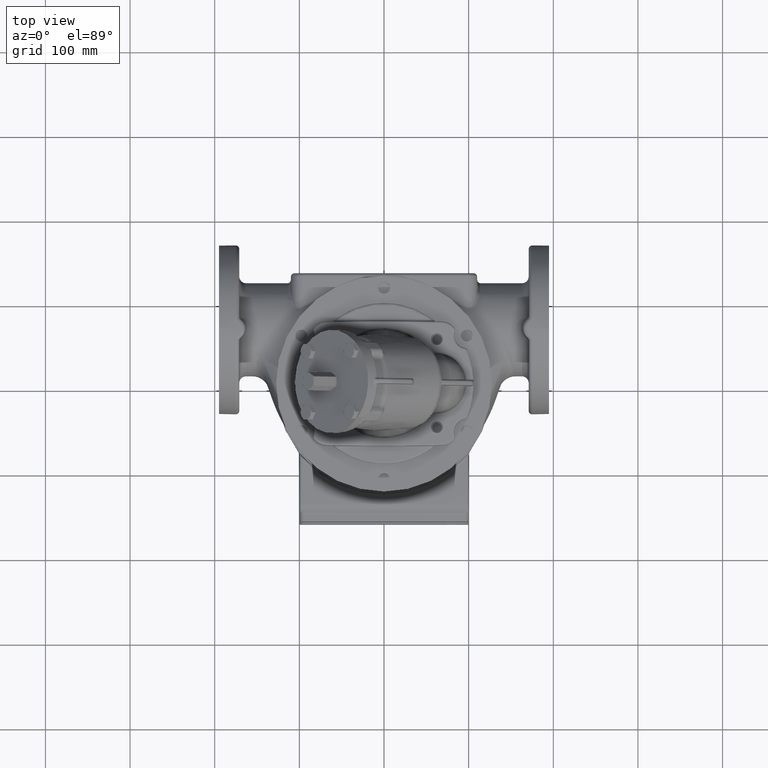
[diagram: clean part render]
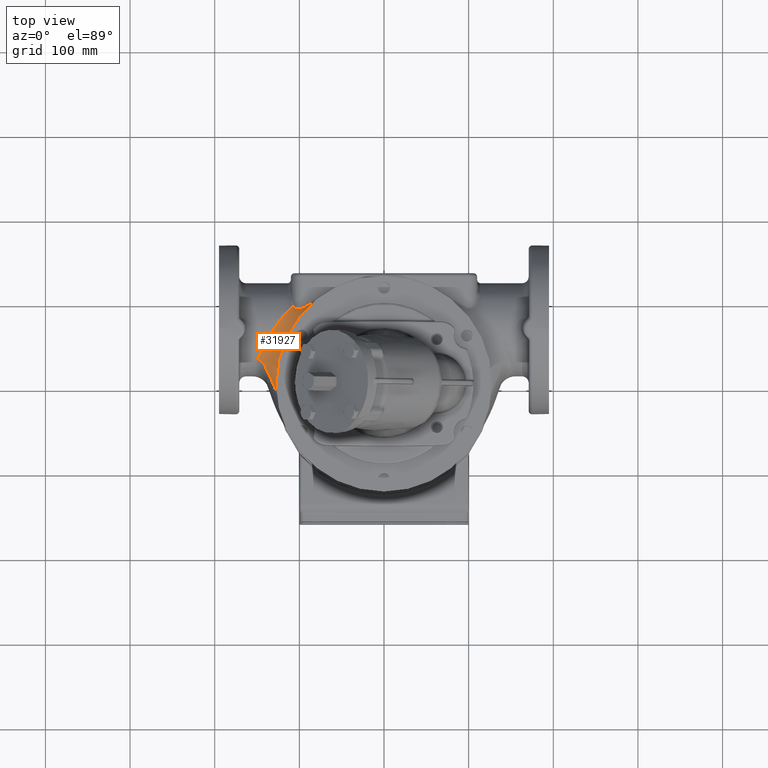
[diagram: same view with one face highlighted and labeled with its STEP entity id]
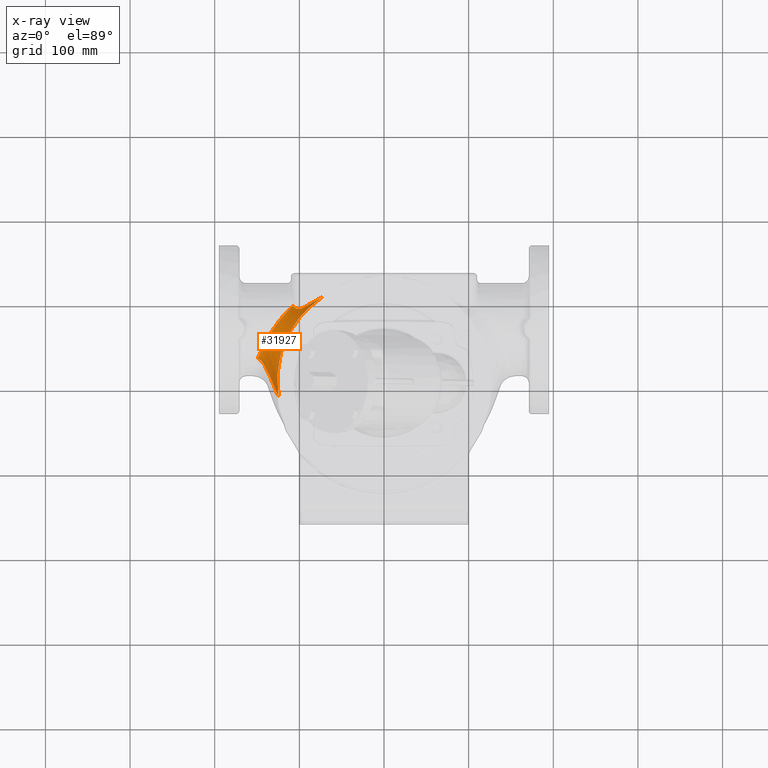
[diagram: x-ray of the same camera — body ghosted, the highlighted face saturated]
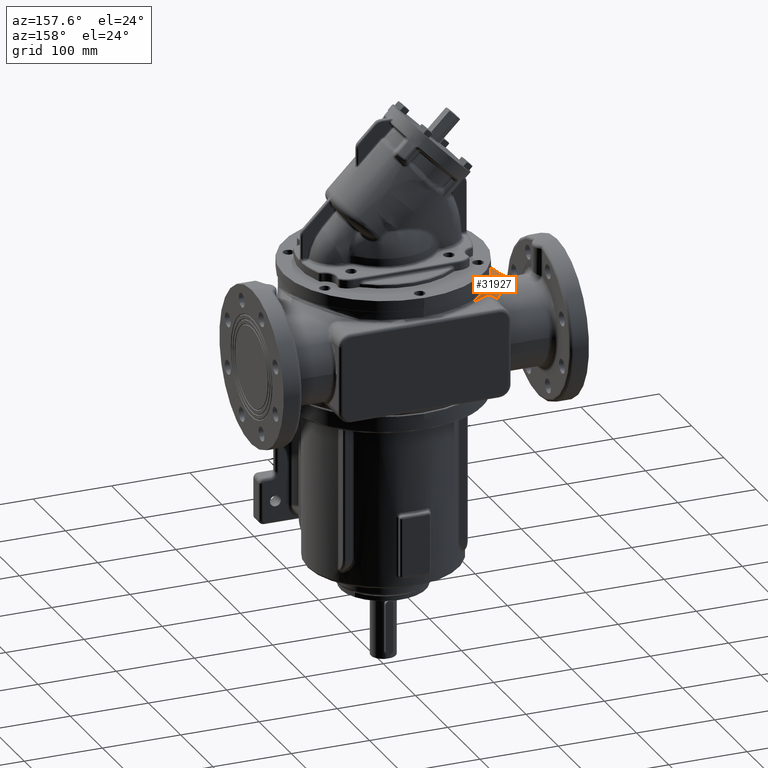
[diagram: same view with one face highlighted and labeled with its STEP entity id]
A machine part, top view. The second image highlights one B-rep face of the part: STEP entity #31927.
The next image is the same camera in x-ray: the body ghosted, the highlighted face saturated — about 0% of this face is hidden behind the body in this view.
A second angle (auxiliary view) of the same face is appended — the face is thin or edge-on in the first view.
In plain terms, the highlighted face is a freeform B-spline surface patch.
Its self-contained STEP definition (entity closure, byte-faithful):
#6374=CARTESIAN_POINT('',(-9.352863820615E1,9.097919038463E1,1.296525135358E2));
#6375=CARTESIAN_POINT('',(-9.301980745850E1,9.127317793800E1,1.296683620455E2));
#6376=CARTESIAN_POINT('',(-9.198525429004E1,9.187219354731E1,1.296998598189E2));
#6377=CARTESIAN_POINT('',(-9.038521124135E1,9.280008248154E1,1.297463597574E2));
#6378=CARTESIAN_POINT('',(-8.872666225035E1,9.376054552483E1,1.297926166661E2));
#6379=CARTESIAN_POINT('',(-8.700301312953E1,9.475489909386E1,1.298384551612E2));
#6380=CARTESIAN_POINT('',(-8.520489212638E1,9.578604310667E1,1.298835543570E2));
#6381=CARTESIAN_POINT('',(-8.332908455860E1,9.685221313942E1,1.299281717391E2));
#6382=CARTESIAN_POINT('',(-8.139144202792E1,9.794078722518E1,1.299719424280E2));
#6383=CARTESIAN_POINT('',(-7.940188641536E1,9.904271248406E1,1.300147532457E2));
#6384=CARTESIAN_POINT('',(-7.734906223613E1,1.001607586263E2,1.300566359528E2));
#6385=CARTESIAN_POINT('',(-7.522504353566E1,1.012950968419E2,1.300976787365E2));
#6386=CARTESIAN_POINT('',(-7.375040466959E1,1.020651476734E2,1.301246464383E2));
#6387=CARTESIAN_POINT('',(-7.300019726256E1,1.024519043781E2,1.301379599815E2));
#6389=CARTESIAN_POINT('',(-1.246290130794E2,-1.514880952594E1,
1.304506410042E2));
#6390=CARTESIAN_POINT('',(-1.247424623020E2,-1.441118430083E1,
1.305722200072E2));
#6391=CARTESIAN_POINT('',(-1.249597305232E2,-1.291831858498E1,
1.308095735635E2));
#6392=CARTESIAN_POINT('',(-1.252526204036E2,-1.062925804183E1,
1.311510016726E2));
#6393=CARTESIAN_POINT('',(-1.255088840638E2,-8.295008907996E0,
1.314801457612E2));
#6394=CARTESIAN_POINT('',(-1.257248186188E2,-5.932563313245E0,
1.317965620991E2));
#6395=CARTESIAN_POINT('',(-1.258981956221E2,-3.553883258276E0,
1.321004619319E2));
#6396=CARTESIAN_POINT('',(-1.260277268224E2,-1.167104158789E0,
1.323922268904E2));
#6397=CARTESIAN_POINT('',(-1.261128368138E2,1.219228995980E0,1.326716023007E2));
#6398=CARTESIAN_POINT('',(-1.261531196827E2,3.599023258477E0,1.329387763599E2));
#6399=CARTESIAN_POINT('',(-1.261486749598E2,5.957561673885E0,1.331932594859E2));
#6400=CARTESIAN_POINT('',(-1.261000756385E2,8.303092699851E0,1.334370483762E2));
#6401=CARTESIAN_POINT('',(-1.260065853623E2,1.064923092713E1,1.336725820748E2));
#6402=CARTESIAN_POINT('',(-1.258694219179E2,1.298694943815E1,1.338982650579E2));
#6403=CARTESIAN_POINT('',(-1.256887849979E2,1.530908254471E1,1.341137384614E2));
#6404=CARTESIAN_POINT('',(-1.254659119041E2,1.760691811648E1,1.343185444247E2));
#6405=CARTESIAN_POINT('',(-1.252005550794E2,1.988675124025E1,1.345138499511E2));
#6406=CARTESIAN_POINT('',(-1.248924654246E2,2.215515088492E1,1.347003400447E2));
#6407=CARTESIAN_POINT('',(-1.245426194811E2,2.440851853276E1,1.348772300473E2));
#6408=CARTESIAN_POINT('',(-1.241517366936E2,2.664258860954E1,1.350443298260E2));
#6409=CARTESIAN_POINT('',(-1.237207269705E2,2.885608193246E1,1.352012716658E2));
#6410=CARTESIAN_POINT('',(-1.232498834688E2,3.104852985631E1,1.353481281436E2));
#6411=CARTESIAN_POINT('',(-1.227402607319E2,3.321917066771E1,1.354844130422E2));
#6412=CARTESIAN_POINT('',(-1.221922878301E2,3.536697293279E1,1.356099953411E2));
#6413=CARTESIAN_POINT('',(-1.216070719902E2,3.749090093856E1,1.357243868955E2));
#6414=CARTESIAN_POINT('',(-1.209854770666E2,3.958886163785E1,1.358272850053E2));
#6415=CARTESIAN_POINT('',(-1.203289219025E2,4.165923344255E1,1.359181941580E2));
#6416=CARTESIAN_POINT('',(-1.196383643944E2,4.370060552523E1,1.359967411675E2));
#6417=CARTESIAN_POINT('',(-1.189151021072E2,4.571180272160E1,1.360625241910E2));
#6418=CARTESIAN_POINT('',(-1.181601605390E2,4.769186079375E1,1.361151559607E2));
#6419=CARTESIAN_POINT('',(-1.173747532950E2,4.963983532299E1,1.361543356892E2));
#6420=CARTESIAN_POINT('',(-1.165595628076E2,5.155603562807E1,1.361797568723E2));
#6421=CARTESIAN_POINT('',(-1.157146929622E2,5.344187545743E1,1.361912406022E2));
#6422=CARTESIAN_POINT('',(-1.148402377160E2,5.529868757228E1,1.361885511366E2));
#6423=CARTESIAN_POINT('',(-1.139359563695E2,5.712809885451E1,1.361715629632E2));
#6424=CARTESIAN_POINT('',(-1.130016505008E2,5.893172605926E1,1.361400834564E2));
#6425=CARTESIAN_POINT('',(-1.120358384981E2,6.071294964356E1,1.360939469514E2));
#6426=CARTESIAN_POINT('',(-1.110369268135E2,6.247502850657E1,1.360329777982E2));
#6427=CARTESIAN_POINT('',(-1.100027278733E2,6.422171909189E1,1.359570089049E2));
#6428=CARTESIAN_POINT('',(-1.089307548356E2,6.595685765890E1,1.358658270916E2));
#6429=CARTESIAN_POINT('',(-1.078185295003E2,6.768362300861E1,1.357591316626E2));
#6430=CARTESIAN_POINT('',(-1.066635697212E2,6.940472055228E1,1.356366653846E2));
#6431=CARTESIAN_POINT('',(-1.054632686808E2,7.112273580861E1,1.354981582094E2));
#6432=CARTESIAN_POINT('',(-1.042148514124E2,7.283996492891E1,1.353434150986E2));
#6433=CARTESIAN_POINT('',(-1.029155591477E2,7.455843737526E1,1.351722406332E2));
#6434=CARTESIAN_POINT('',(-1.015632102757E2,7.627909074895E1,1.349845006627E2));
#6435=CARTESIAN_POINT('',(-1.001554078575E2,7.800287904555E1,1.347800204713E2));
#6436=CARTESIAN_POINT('',(-9.869104164033E1,7.972866749534E1,1.345588904792E2));
#6437=CARTESIAN_POINT('',(-9.717029335402E1,8.145418958524E1,1.343214619967E2));
#6438=CARTESIAN_POINT('',(-9.559352421627E1,8.317726857472E1,1.340684723775E2));
#6439=CARTESIAN_POINT('',(-9.396132063262E1,8.489540978129E1,1.338005344146E2));
#6440=CARTESIAN_POINT('',(-9.227426871863E1,8.660578972679E1,1.335183365575E2));
#6441=CARTESIAN_POINT('',(-9.053465747047E1,8.830432435969E1,1.332225257040E2));
#6442=CARTESIAN_POINT('',(-8.874527702314E1,8.998728312992E1,1.329143203065E2));
#6443=CARTESIAN_POINT('',(-8.690862779407E1,9.165093713423E1,1.325948259269E2));
#6444=CARTESIAN_POINT('',(-8.502732885477E1,9.329196004174E1,1.322651382935E2));
#6445=CARTESIAN_POINT('',(-8.310470115357E1,9.490621325157E1,1.319263617165E2));
#6446=CARTESIAN_POINT('',(-8.114530622803E1,9.648974208445E1,1.315798117804E2));
#6447=CARTESIAN_POINT('',(-7.915266178153E1,9.803908671728E1,1.312270753229E2));
#6448=CARTESIAN_POINT('',(-7.712968141215E1,9.955193042619E1,1.308688832874E2));
#6449=CARTESIAN_POINT('',(-7.507875353179E1,1.010259423677E2,1.305059882921E2));
#6450=CARTESIAN_POINT('',(-7.369631118268E1,1.019808605811E2,1.302610428681E2));
#6451=CARTESIAN_POINT('',(-7.300133152208E1,1.024512288776E2,1.301380501532E2));
#6453=CARTESIAN_POINT('',(-1.246300479906E2,-1.514792726698E1,
1.304505519832E2));
#6454=CARTESIAN_POINT('',(-1.247089724927E2,-1.498447553668E1,
1.303854027806E2));
#6455=CARTESIAN_POINT('',(-1.252562312698E2,-1.384374623578E1,
1.299333324662E2));
#6456=CARTESIAN_POINT('',(-1.262331113471E2,-1.171683995750E1,
1.291239307389E2));
#6457=CARTESIAN_POINT('',(-1.275141297400E2,-8.759300746489E0,
1.280688210439E2));
#6458=CARTESIAN_POINT('',(-1.287426542046E2,-5.795966531630E0,
1.270747626869E2));
#6459=CARTESIAN_POINT('',(-1.297356713536E2,-3.326677381251E0,
1.262931445806E2));
#6460=CARTESIAN_POINT('',(-1.305184436840E2,-1.354294151106E0,
1.256935236712E2));
#6461=CARTESIAN_POINT('',(-1.311011758954E2,1.226596509675E-1,
1.252561986011E2));
#6462=CARTESIAN_POINT('',(-1.316809671943E2,1.596417093203E0,1.248309012324E2));
#6463=CARTESIAN_POINT('',(-1.322591824062E2,3.066151894583E0,1.244173135701E2));
#6464=CARTESIAN_POINT('',(-1.328372195265E2,4.531043131920E0,1.240150674469E2));
#6465=CARTESIAN_POINT('',(-1.334164518493E2,5.990074746771E0,1.236238005755E2));
#6466=CARTESIAN_POINT('',(-1.339982822976E2,7.442040913497E0,1.232431073449E2));
#6467=CARTESIAN_POINT('',(-1.345842439067E2,8.885832107763E0,1.228725493467E2));
#6468=CARTESIAN_POINT('',(-1.351757548021E2,1.032013313490E1,1.225119920260E2));
#6469=CARTESIAN_POINT('',(-1.359737477290E2,1.221773045248E1,1.220445335744E2));
#6470=CARTESIAN_POINT('',(-1.369926519404E2,1.455820703534E1,1.214850431655E2));
#6471=CARTESIAN_POINT('',(-1.382618988537E2,1.729805214470E1,1.208551941692E2));
#6472=CARTESIAN_POINT('',(-1.395924924455E2,1.994753263773E1,1.202708135852E2));
#6473=CARTESIAN_POINT('',(-1.409991884499E2,2.247045503864E1,1.197384986221E2));
#6474=CARTESIAN_POINT('',(-1.424952495156E2,2.481316932463E1,1.192699113763E2));
#6475=CARTESIAN_POINT('',(-1.440857156375E2,2.688738021787E1,1.188805235964E2));
#6476=CARTESIAN_POINT('',(-1.457488630983E2,2.854612767527E1,1.185856860229E2));
#6477=CARTESIAN_POINT('',(-1.471130438061E2,2.938606351370E1,1.184100017182E2));
#6478=CARTESIAN_POINT('',(-1.481162340599E2,2.962511289876E1,1.182487245736E2));
#6479=CARTESIAN_POINT('',(-1.485860568009E2,2.960063225845E1,1.181429797058E2));
#6480=CARTESIAN_POINT('',(-1.488174567907E2,2.955559797282E1,1.180808086866E2));
#6482=CARTESIAN_POINT('',(-1.488173690397E2,2.955560025053E1,1.180807308646E2));
#6483=CARTESIAN_POINT('',(-1.488577732437E2,2.954760583166E1,1.180697703205E2));
#6484=CARTESIAN_POINT('',(-1.489393250257E2,2.952971985948E1,1.180474129276E2));
#6485=CARTESIAN_POINT('',(-1.490610648252E2,2.949706529289E1,1.180120174348E2));
#6486=CARTESIAN_POINT('',(-1.491826905112E2,2.945843306531E1,1.179747856830E2));
#6487=CARTESIAN_POINT('',(-1.492631248635E2,2.942902176502E1,1.179488389221E2));
#6488=CARTESIAN_POINT('',(-1.493036310909E2,2.941343930242E1,1.179356156007E2));
#6490=CARTESIAN_POINT('',(-1.493036310909E2,2.941343930242E1,1.179356156007E2));
#6491=CARTESIAN_POINT('',(-1.488046658055E2,3.065501336908E1,1.189891547369E2));
#6492=CARTESIAN_POINT('',(-1.475753928872E2,3.363038466825E1,1.212930875600E2));
#6493=CARTESIAN_POINT('',(-1.454022454634E2,3.854058759450E1,1.243505429607E2));
#6494=CARTESIAN_POINT('',(-1.427491876659E2,4.407590300463E1,1.269836251283E2));
#6495=CARTESIAN_POINT('',(-1.403184761051E2,4.875814222212E1,1.286101440137E2));
#6496=CARTESIAN_POINT('',(-1.382531453272E2,5.250218675147E1,1.295869921290E2));
#6497=CARTESIAN_POINT('',(-1.366466916251E2,5.530004408473E1,1.301625782938E2));
#6498=CARTESIAN_POINT('',(-1.349859832229E2,5.807927110635E1,1.305865656256E2));
#6499=CARTESIAN_POINT('',(-1.332744591521E2,6.083269303175E1,1.308647865867E2));
#6500=CARTESIAN_POINT('',(-1.315155635803E2,6.355428546618E1,1.310031834437E2));
#6501=CARTESIAN_POINT('',(-1.297124000632E2,6.623889289621E1,1.310076272700E2));
#6502=CARTESIAN_POINT('',(-1.278677784080E2,6.888184482255E1,1.308838756213E2));
#6503=CARTESIAN_POINT('',(-1.253565616784E2,7.234480006679E1,1.305554571082E2));
#6504=CARTESIAN_POINT('',(-1.221269357425E2,7.654994504759E1,1.298524821982E2));
#6505=CARTESIAN_POINT('',(-1.181287244457E2,8.137802872926E1,1.285820952897E2));
#6506=CARTESIAN_POINT('',(-1.140827590859E2,8.591686550346E1,1.269411586812E2));
#6507=CARTESIAN_POINT('',(-1.113503691396E2,8.876528315992E1,1.256239953990E2));
#6508=CARTESIAN_POINT('',(-1.100000000819E2,9.012223362905E1,1.249272347909E2));
#6510=CARTESIAN_POINT('',(-1.100000000819E2,9.012223362905E1,1.249272347909E2));
#6511=CARTESIAN_POINT('',(-1.097793766860E2,9.034240037625E1,1.248141877223E2));
#6512=CARTESIAN_POINT('',(-1.093375037038E2,9.078132746678E1,1.245850445700E2));
#6513=CARTESIAN_POINT('',(-1.086728224927E2,9.143534574351E1,1.242323252481E2));
#6514=CARTESIAN_POINT('',(-1.082284411746E2,9.186845528273E1,1.239911109028E2));
#6515=CARTESIAN_POINT('',(-1.080060192091E2,9.208413661250E1,1.238690799865E2));
#6517=CARTESIAN_POINT('',(-1.080060192091E2,9.208413661250E1,1.238690799865E2));
#6518=CARTESIAN_POINT('',(-1.079355150830E2,9.200421107532E1,1.239143456978E2));
#6519=CARTESIAN_POINT('',(-1.077893818295E2,9.184213882373E1,1.240103172599E2));
#6520=CARTESIAN_POINT('',(-1.075563635750E2,9.159550009594E1,1.241689644195E2));
#6521=CARTESIAN_POINT('',(-1.073076774604E2,9.134628719266E1,1.243420267777E2));
#6522=CARTESIAN_POINT('',(-1.070498057215E2,9.110273587019E1,1.245235676264E2));
#6523=CARTESIAN_POINT('',(-1.067786116149E2,9.086241926890E1,1.247151719146E2));
#6524=CARTESIAN_POINT('',(-1.065026816801E2,9.063382074561E1,1.249095472762E2));
#6525=CARTESIAN_POINT('',(-1.062190004853E2,9.041491431830E1,1.251076388384E2));
#6526=CARTESIAN_POINT('',(-1.059320334341E2,9.020935740977E1,1.253054597954E2));
#6527=CARTESIAN_POINT('',(-1.056407332533E2,9.001638194235E1,1.255029594692E2));
#6528=CARTESIAN_POINT('',(-1.053464742220E2,8.983672518208E1,1.256986765335E2));
#6529=CARTESIAN_POINT('',(-1.050513889308E2,8.967130941924E1,1.258906982166E2));
#6530=CARTESIAN_POINT('',(-1.047557104594E2,8.951976682698E1,1.260785672202E2));
#6531=CARTESIAN_POINT('',(-1.044594109406E2,8.938163297287E1,1.262620847148E2));
#6532=CARTESIAN_POINT('',(-1.041633368514E2,8.925687678376E1,1.264405640028E2));
#6533=CARTESIAN_POINT('',(-1.038680336504E2,8.914515748407E1,1.266136609638E2));
#6534=CARTESIAN_POINT('',(-1.035735575762E2,8.904601624144E1,1.267812399180E2));
#6535=CARTESIAN_POINT('',(-1.032797209662E2,8.895882419047E1,1.269434381669E2));
#6536=CARTESIAN_POINT('',(-1.029860799959E2,8.888302436468E1,1.271004992062E2));
#6537=CARTESIAN_POINT('',(-1.026928705114E2,8.881825662952E1,1.272523393903E2));
#6538=CARTESIAN_POINT('',(-1.024003679829E2,8.876422862023E1,1.273988327768E2));
#6539=CARTESIAN_POINT('',(-1.021086608484E2,8.872050911536E1,1.275400458386E2));
#6540=CARTESIAN_POINT('',(-1.018177848590E2,8.868680229322E1,1.276759880998E2));
#6541=CARTESIAN_POINT('',(-1.015273637806E2,8.866274589369E1,1.278068729414E2));
#6542=CARTESIAN_POINT('',(-1.012368326924E2,8.864800046502E1,1.279330015752E2));
#6543=CARTESIAN_POINT('',(-1.009457569903E2,8.864231535628E1,1.280545895862E2));
#6544=CARTESIAN_POINT('',(-1.006537578145E2,8.864550051306E1,1.281718072887E2));
#6545=CARTESIAN_POINT('',(-1.003604646418E2,8.865744126421E1,1.282847835234E2));
#6546=CARTESIAN_POINT('',(-1.000655693689E2,8.867802815971E1,1.283936322277E2));
#6547=CARTESIAN_POINT('',(-9.976878192515E1,8.870724672067E1,1.284983993534E2));
#6548=CARTESIAN_POINT('',(-9.946997596299E1,8.874503531380E1,1.285991043976E2));
#6549=CARTESIAN_POINT('',(-9.916901424718E1,8.879140014831E1,1.286957247287E2));
#6550=CARTESIAN_POINT('',(-9.886528432535E1,8.884646931058E1,1.287883534732E2));
#6551=CARTESIAN_POINT('',(-9.855824031405E1,8.891038556281E1,1.288770479327E2));
#6552=CARTESIAN_POINT('',(-9.824708892758E1,8.898339616542E1,1.289619069596E2));
#6553=CARTESIAN_POINT('',(-9.793099556799E1,8.906584464250E1,1.290429841496E2));
#6554=CARTESIAN_POINT('',(-9.760939367515E1,8.915808165733E1,1.291202109043E2));
#6555=CARTESIAN_POINT('',(-9.728192915875E1,8.926043242314E1,1.291934393121E2));
#6556=CARTESIAN_POINT('',(-9.694800200630E1,8.937334139976E1,1.292625401990E2));
#6557=CARTESIAN_POINT('',(-9.660679146445E1,8.949738957165E1,1.293273798262E2));
#6558=CARTESIAN_POINT('',(-9.625759894989E1,8.963317681975E1,1.293877475281E2));
#6559=CARTESIAN_POINT('',(-9.589977371060E1,8.978136148489E1,1.294433544942E2));
#6560=CARTESIAN_POINT('',(-9.553273059860E1,8.994259481841E1,1.294938728758E2));
#6561=CARTESIAN_POINT('',(-9.515600950487E1,9.011755686309E1,1.295388735730E2));
#6562=CARTESIAN_POINT('',(-9.476908741240E1,9.030697386170E1,1.295778948513E2));
#6563=CARTESIAN_POINT('',(-9.437026596544E1,9.051224400534E1,1.296104886097E2));
#6564=CARTESIAN_POINT('',(-9.395822476822E1,9.073463800601E1,1.296360933766E2));
#6565=CARTESIAN_POINT('',(-9.367342161651E1,9.089553716321E1,1.296480048367E2));
#6566=CARTESIAN_POINT('',(-9.352863820615E1,9.097919038463E1,1.296525135358E2));
#16481=VERTEX_POINT('',#6374);
#16482=VERTEX_POINT('',#6387);
#16485=VERTEX_POINT('',#6517);
#16647=VERTEX_POINT('',#6482);
#16648=VERTEX_POINT('',#6488);
#16660=VERTEX_POINT('',#6508);
#16667=VERTEX_POINT('',#6453);
#31524=CARTESIAN_POINT('',(-9.917407871196E1,1.000985108105E2,
1.183456097183E2));
#31525=CARTESIAN_POINT('',(-9.876567693310E1,1.002792794261E2,
1.181926662010E2));
#31526=CARTESIAN_POINT('',(-9.797250332696E1,1.005746440795E2,
1.179563453548E2));
#31527=CARTESIAN_POINT('',(-9.671173933880E1,1.009225911770E2,
1.177706235855E2));
#31528=CARTESIAN_POINT('',(-9.543007883886E1,1.012011305397E2,
1.177443614311E2));
#31529=CARTESIAN_POINT('',(-9.361788123805E1,1.015281392552E2,
1.179096997959E2));
#31530=CARTESIAN_POINT('',(-9.118449199122E1,1.018900427969E2,
1.184795749847E2));
#31531=CARTESIAN_POINT('',(-8.807380596220E1,1.023039689422E2,
1.196688431957E2));
#31532=CARTESIAN_POINT('',(-8.483269858232E1,1.026972415521E2,
1.212772019665E2));
#31533=CARTESIAN_POINT('',(-8.150301244686E1,1.030399928812E2,
1.232253552738E2));
#31534=CARTESIAN_POINT('',(-7.811229173736E1,1.032831632946E2,
1.254422944669E2));
#31535=CARTESIAN_POINT('',(-7.524932325561E1,1.033503558180E2,
1.274602536741E2));
#31536=CARTESIAN_POINT('',(-7.293953862080E1,1.032846634665E2,
1.291458913822E2));
#31537=CARTESIAN_POINT('',(-7.119730754430E1,1.031647804126E2,
1.304376100607E2));
#31538=CARTESIAN_POINT('',(-6.984666263573E1,1.030091563380E2,
1.314474693817E2));
#31539=CARTESIAN_POINT('',(-6.907695881305E1,1.028938181521E2,
1.320230590486E2));
#31540=CARTESIAN_POINT('',(-6.889378629284E1,1.028648078099E2,
1.321599793685E2));
#31541=CARTESIAN_POINT('',(-9.994343441908E1,9.945972051349E1,
1.188750796539E2));
#31542=CARTESIAN_POINT('',(-9.954334544782E1,9.962891028603E1,
1.187362865493E2));
#31543=CARTESIAN_POINT('',(-9.876807986756E1,9.990493716286E1,
1.185242767597E2));
#31544=CARTESIAN_POINT('',(-9.753943403072E1,1.002282120567E2,
1.183664681004E2));
#31545=CARTESIAN_POINT('',(-9.629229750099E1,1.004848159680E2,
1.183595730640E2));
#31546=CARTESIAN_POINT('',(-9.452993286218E1,1.007829833157E2,
1.185416847508E2));
#31547=CARTESIAN_POINT('',(-9.216320859328E1,1.011077209364E2,
1.191172164771E2));
#31548=CARTESIAN_POINT('',(-8.913375855229E1,1.014736873141E2,
1.202945840635E2));
#31549=CARTESIAN_POINT('',(-8.597219217011E1,1.018166570776E2,
1.218769056777E2));
#31550=CARTESIAN_POINT('',(-8.271872473671E1,1.021083470352E2,
1.237880136234E2));
#31551=CARTESIAN_POINT('',(-7.939988073553E1,1.023014830718E2,
1.259589781956E2));
#31552=CARTESIAN_POINT('',(-7.659256486454E1,1.023294859898E2,
1.279322079386E2));
#31553=CARTESIAN_POINT('',(-7.432449432451E1,1.022352232809E2,
1.295784546908E2));
#31554=CARTESIAN_POINT('',(-7.261211110830E1,1.020957234152E2,
1.308388321719E2));
#31555=CARTESIAN_POINT('',(-7.128335116846E1,1.019267558596E2,
1.318231581391E2));
#31556=CARTESIAN_POINT('',(-7.052565722781E1,1.018046769557E2,
1.323837522165E2));
#31557=CARTESIAN_POINT('',(-7.034531701223E1,1.017741146658E2,
1.325170795177E2));
#31558=CARTESIAN_POINT('',(-1.021376178152E2,9.760563903768E1,
1.203423038412E2));
#31559=CARTESIAN_POINT('',(-1.017590450208E2,9.773748117093E1,
1.202444303627E2));
#31560=CARTESIAN_POINT('',(-1.010306795087E2,9.795097092108E1,
1.201030685112E2));
#31561=CARTESIAN_POINT('',(-9.988763670349E1,9.819478600356E1,
1.200273158924E2));
#31562=CARTESIAN_POINT('',(-9.873358544270E1,9.838153518559E1,
1.200781990100E2));
#31563=CARTESIAN_POINT('',(-9.710672929737E1,9.858918336620E1,
1.203115477643E2));
#31564=CARTESIAN_POINT('',(-9.492294574432E1,9.879968823771E1,
1.209070832538E2));
#31565=CARTESIAN_POINT('',(-9.211783973557E1,9.902078852123E1,
1.220541410733E2));
#31566=CARTESIAN_POINT('',(-8.917654643047E1,9.921323817428E1,
1.235648986697E2));
#31567=CARTESIAN_POINT('',(-8.613432393922E1,9.935301642424E1,
1.253722024882E2));
#31568=CARTESIAN_POINT('',(-8.301465661675E1,9.939798916802E1,
1.274130924395E2));
#31569=CARTESIAN_POINT('',(-8.036150480479E1,9.931055461682E1,
1.292589898229E2));
#31570=CARTESIAN_POINT('',(-7.820902603833E1,9.913257488277E1,
1.307928151212E2));
#31571=CARTESIAN_POINT('',(-7.657940901930E1,9.893583934444E1,
1.319636804403E2));
#31572=CARTESIAN_POINT('',(-7.531141168102E1,9.872813715780E1,
1.328751046655E2));
#31573=CARTESIAN_POINT('',(-7.458710588913E1,9.858656171436E1,
1.333929279590E2));
#31574=CARTESIAN_POINT('',(-7.441464238725E1,9.855151468349E1,
1.335160103385E2));
#31575=CARTESIAN_POINT('',(-1.050427815630E2,9.502527849462E1,
1.221272553729E2));
#31576=CARTESIAN_POINT('',(-1.046864513534E2,9.509309618112E1,
1.220820902494E2));
#31577=CARTESIAN_POINT('',(-1.040071676731E2,9.519770021276E1,
1.220326725414E2));
#31578=CARTESIAN_POINT('',(-1.029563595911E2,9.530211375705E1,
1.220669728885E2));
#31579=CARTESIAN_POINT('',(-1.019051414098E2,9.536788312227E1,
1.221983426822E2));
#31580=CARTESIAN_POINT('',(-1.004312796461E2,9.542278239399E1,
1.225070743660E2));
#31581=CARTESIAN_POINT('',(-9.845961859898E1,9.544917951499E1,
1.231403024930E2));
#31582=CARTESIAN_POINT('',(-9.592049488037E1,9.544737672392E1,
1.242593173064E2));
#31583=CARTESIAN_POINT('',(-9.324337161295E1,9.541458610610E1,
1.256849158255E2));
#31584=CARTESIAN_POINT('',(-9.045580991822E1,9.533122530932E1,
1.273616923312E2));
#31585=CARTESIAN_POINT('',(-8.757677175989E1,9.516203845916E1,
1.292346972230E2));
#31586=CARTESIAN_POINT('',(-8.511026519753E1,9.491081960006E1,
1.309138467778E2));
#31587=CARTESIAN_POINT('',(-8.309828549971E1,9.461614737543E1,
1.322999331944E2));
#31588=CARTESIAN_POINT('',(-8.156968669263E1,9.434074650755E1,
1.333532538918E2));
#31589=CARTESIAN_POINT('',(-8.037628544239E1,9.408066265207E1,
1.341693183965E2));
#31590=CARTESIAN_POINT('',(-7.969317194155E1,9.391301390413E1,
1.346314683727E2));
#31591=CARTESIAN_POINT('',(-7.953043847778E1,9.387198573759E1,
1.347412329462E2));
#31592=CARTESIAN_POINT('',(-1.078717673971E2,9.237060720874E1,
1.237255743451E2));
#31593=CARTESIAN_POINT('',(-1.075345864124E2,9.236890376820E1,
1.237241318498E2));
#31594=CARTESIAN_POINT('',(-1.068962971888E2,9.235266501041E1,
1.237510598714E2));
#31595=CARTESIAN_POINT('',(-1.059208341067E2,9.229800695048E1,
1.238778628447E2));
#31596=CARTESIAN_POINT('',(-1.049534549169E2,9.222400429450E1,
1.240779834313E2));
#31597=CARTESIAN_POINT('',(-1.036051388273E2,9.210248298755E1,
1.244523140493E2));
#31598=CARTESIAN_POINT('',(-1.018101911146E2,9.191945197919E1,
1.251198168866E2));
#31599=CARTESIAN_POINT('',(-9.949739461992E1,9.167176483569E1,
1.262143447633E2));
#31600=CARTESIAN_POINT('',(-9.704861032605E1,9.139674617368E1,
1.275621909211E2));
#31601=CARTESIAN_POINT('',(-9.448368113147E1,9.107828864776E1,
1.291180070836E2));
#31602=CARTESIAN_POINT('',(-9.181695566737E1,9.068759733332E1,
1.308344611607E2));
#31603=CARTESIAN_POINT('',(-8.951670606890E1,9.027014707422E1,
1.323582761676E2));
#31604=CARTESIAN_POINT('',(-8.763094844447E1,8.985865862966E1,
1.336077012540E2));
#31605=CARTESIAN_POINT('',(-8.619368194032E1,8.950520035984E1,
1.345530258965E2));
#31606=CARTESIAN_POINT('',(-8.506818044325E1,8.919350751976E1,
1.352822528667E2));
#31607=CARTESIAN_POINT('',(-8.442272416906E1,8.900021217822E1,
1.356940702011E2));
#31608=CARTESIAN_POINT('',(-8.426889466098E1,8.895330081825E1,
1.357918159644E2));
#31609=CARTESIAN_POINT('',(-1.106831249510E2,8.963007014532E1,
1.252211289824E2));
#31610=CARTESIAN_POINT('',(-1.103638280552E2,8.955708262334E1,
1.252565202087E2));
#31611=CARTESIAN_POINT('',(-1.097628217227E2,8.941524675616E1,
1.253476317961E2));
#31612=CARTESIAN_POINT('',(-1.088541600964E2,8.919208659667E1,
1.255522850940E2));
#31613=CARTESIAN_POINT('',(-1.079605265724E2,8.896832749629E1,
1.258103277553E2));
#31614=CARTESIAN_POINT('',(-1.067226664914E2,8.865681871051E1,
1.262397151930E2));
#31615=CARTESIAN_POINT('',(-1.050842472021E2,8.824841068457E1,
1.269346410405E2));
#31616=CARTESIAN_POINT('',(-1.029747180431E2,8.773903944471E1,
1.280029940414E2));
#31617=CARTESIAN_POINT('',(-1.007335026878E2,8.720926668415E1,
1.292754136034E2));
#31618=CARTESIAN_POINT('',(-9.837298156558E1,8.664616337700E1,
1.307153707161E2));
#31619=CARTESIAN_POINT('',(-9.590288684612E1,8.602712622099E1,
1.322828054879E2));
#31620=CARTESIAN_POINT('',(-9.375791379902E1,8.543972169164E1,
1.336598319446E2));
#31621=CARTESIAN_POINT('',(-9.199077971964E1,8.490925579919E1,
1.347811556879E2));
#31622=CARTESIAN_POINT('',(-9.063969907579E1,8.447636658380E1,
1.356258734284E2));
#31623=CARTESIAN_POINT('',(-8.957851153773E1,8.411204155298E1,
1.362747753344E2));
#31624=CARTESIAN_POINT('',(-8.896879453731E1,8.389245858214E1,
1.366402770980E2));
#31625=CARTESIAN_POINT('',(-8.882341906491E1,8.383950670541E1,
1.367269771766E2));
#31626=CARTESIAN_POINT('',(-1.141567480322E2,8.604150927206E1,
1.268920285283E2));
#31627=CARTESIAN_POINT('',(-1.138576861298E2,8.588138885391E1,
1.269580592142E2));
#31628=CARTESIAN_POINT('',(-1.132971821203E2,8.558282318087E1,
1.271020109186E2));
#31629=CARTESIAN_POINT('',(-1.124578049594E2,8.514281413555E1,
1.273696616923E2));
#31630=CARTESIAN_POINT('',(-1.116392051245E2,8.472218895330E1,
1.276733489259E2));
#31631=CARTESIAN_POINT('',(-1.105131973549E2,8.415750335342E1,
1.281436255074E2));
#31632=CARTESIAN_POINT('',(-1.090342338479E2,8.344582946209E1,
1.288513846018E2));
#31633=CARTESIAN_POINT('',(-1.071361848611E2,8.258581711680E1,
1.298774638854E2));
#31634=CARTESIAN_POINT('',(-1.051155957675E2,8.171782192431E1,
1.310576208889E2));
#31635=CARTESIAN_POINT('',(-1.029765381532E2,8.083295602432E1,
1.323637161785E2));
#31636=CARTESIAN_POINT('',(-1.007231099048E2,7.991582401548E1,
1.337637051830E2));
#31637=CARTESIAN_POINT('',(-9.875182678849E1,7.910732448366E1,
1.349794703238E2));
#31638=CARTESIAN_POINT('',(-9.711860761049E1,7.842147011543E1,
1.359625696774E2));
#31639=CARTESIAN_POINT('',(-9.586532282438E1,7.788410507118E1,
1.367000489152E2));
#31640=CARTESIAN_POINT('',(-9.487738332059E1,7.744957462948E1,
1.372644169034E2));
#31641=CARTESIAN_POINT('',(-9.430841723041E1,7.719435547577E1,
1.375815977784E2));
#31642=CARTESIAN_POINT('',(-9.417268285324E1,7.713317539346E1,
1.376567975791E2));
#31643=CARTESIAN_POINT('',(-1.182458239968E2,8.148180128695E1,
1.285494169288E2));
#31644=CARTESIAN_POINT('',(-1.179662792034E2,8.123390784768E1,
1.286261139484E2));
#31645=CARTESIAN_POINT('',(-1.174439091203E2,8.077281091532E1,
1.287870549897E2));
#31646=CARTESIAN_POINT('',(-1.166675882075E2,8.009723950127E1,
1.290703509171E2));
#31647=CARTESIAN_POINT('',(-1.159161355391E2,7.945480318127E1,
1.293799065832E2));
#31648=CARTESIAN_POINT('',(-1.148896945979E2,7.859624372306E1,
1.298452500611E2));
#31649=CARTESIAN_POINT('',(-1.135533370842E2,7.752009393520E1,
1.305220342631E2));
#31650=CARTESIAN_POINT('',(-1.118488502976E2,7.622738373895E1,
1.314723692686E2));
#31651=CARTESIAN_POINT('',(-1.100356583862E2,7.493488931065E1,
1.325428939700E2));
#31652=CARTESIAN_POINT('',(-1.081100162934E2,7.364027017249E1,
1.337117061195E2));
#31653=CARTESIAN_POINT('',(-1.060696955463E2,7.233689332520E1,
1.349534251863E2));
#31654=CARTESIAN_POINT('',(-1.042717025242E2,7.123461584462E1,
1.360252903601E2));
#31655=CARTESIAN_POINT('',(-1.027726553882E2,7.033611437038E1,
1.368893344482E2));
#31656=CARTESIAN_POINT('',(-1.016173660758E2,6.965187131806E1,
1.375363934419E2));
#31657=CARTESIAN_POINT('',(-1.007026076251E2,6.911495944992E1,
1.380308786415E2));
#31658=CARTESIAN_POINT('',(-1.001741844460E2,6.880606847799E1,
1.383085893457E2));
#31659=CARTESIAN_POINT('',(-1.000480305637E2,6.873238601842E1,
1.383744212406E2));
#31660=CARTESIAN_POINT('',(-1.222384295511E2,7.667937781106E1,
1.298247119052E2));
#31661=CARTESIAN_POINT('',(-1.219721476992E2,7.637052668703E1,
1.298897434818E2));
#31662=CARTESIAN_POINT('',(-1.214761382048E2,7.579145774980E1,
1.300281634369E2));
#31663=CARTESIAN_POINT('',(-1.207440955448E2,7.493245876267E1,
1.302759254703E2));
#31664=CARTESIAN_POINT('',(-1.200401984007E2,7.410741265153E1,
1.305492481815E2));
#31665=CARTESIAN_POINT('',(-1.190847812657E2,7.299508475561E1,
1.309627198026E2));
#31666=CARTESIAN_POINT('',(-1.178512705897E2,7.158449238275E1,
1.315678073179E2));
#31667=CARTESIAN_POINT('',(-1.162890095530E2,6.986982443871E1,
1.324220841428E2));
#31668=CARTESIAN_POINT('',(-1.146311306480E2,6.814292544450E1,
1.333889526099E2));
#31669=CARTESIAN_POINT('',(-1.128678638672E2,6.641120108351E1,
1.344495530821E2));
#31670=CARTESIAN_POINT('',(-1.109913228650E2,6.467921929225E1,
1.355815625085E2));
#31671=CARTESIAN_POINT('',(-1.093267388198E2,6.323717059259E1,
1.365630588406E2));
#31672=CARTESIAN_POINT('',(-1.079302559279E2,6.208392103236E1,
1.373566727277E2));
#31673=CARTESIAN_POINT('',(-1.068492553130E2,6.121886974901E1,
1.379521323596E2));
#31674=CARTESIAN_POINT('',(-1.059892888514E2,6.055185823189E1,
1.384080224808E2));
#31675=CARTESIAN_POINT('',(-1.054908832413E2,6.017308084466E1,
1.386643529505E2));
#31676=CARTESIAN_POINT('',(-1.053718017999E2,6.008301579068E1,
1.387251331382E2));
#31677=CARTESIAN_POINT('',(-1.254657733379E2,7.248382504247E1,
1.305372222315E2));
#31678=CARTESIAN_POINT('',(-1.252048136534E2,7.215267447157E1,
1.305794258205E2));
#31679=CARTESIAN_POINT('',(-1.247204342600E2,7.152390565684E1,
1.306760482289E2));
#31680=CARTESIAN_POINT('',(-1.240099001822E2,7.057157193025E1,
1.308647365337E2));
#31681=CARTESIAN_POINT('',(-1.233302402057E2,6.964108298025E1,
1.310839995976E2));
#31682=CARTESIAN_POINT('',(-1.224120599535E2,6.836725685983E1,
1.314282749586E2));
#31683=CARTESIAN_POINT('',(-1.212338897069E2,6.671862664075E1,
1.319527062723E2));
#31684=CARTESIAN_POINT('',(-1.197498686016E2,6.467076623271E1,
1.327207270412E2));
#31685=CARTESIAN_POINT('',(-1.181788913090E2,6.257454579900E1,
1.336127151150E2));
#31686=CARTESIAN_POINT('',(-1.165074945146E2,6.044997334903E1,
1.346102130346E2));
#31687=CARTESIAN_POINT('',(-1.147238504520E2,5.831527054019E1,
1.356908039467E2));
#31688=CARTESIAN_POINT('',(-1.131341616671E2,5.654145095525E1,
1.366387227827E2));
#31689=CARTESIAN_POINT('',(-1.117940112315E2,5.513260945011E1,
1.374105691557E2));
#31690=CARTESIAN_POINT('',(-1.107529373066E2,5.408269842431E1,
1.379921057954E2));
#31691=CARTESIAN_POINT('',(-1.099215340454E2,5.327998466157E1,
1.384390012461E2));
#31692=CARTESIAN_POINT('',(-1.094383575907E2,5.282727490176E1,
1.386908271028E2));
#31693=CARTESIAN_POINT('',(-1.093228383694E2,5.271981744523E1,
1.387505694472E2));
#31694=CARTESIAN_POINT('',(-1.279763745637E2,6.902065217479E1,
1.308746408910E2));
#31695=CARTESIAN_POINT('',(-1.277167893306E2,6.869072139365E1,
1.308952847823E2));
#31696=CARTESIAN_POINT('',(-1.272362575031E2,6.805486640750E1,
1.309525905887E2));
#31697=CARTESIAN_POINT('',(-1.265341267675E2,6.706805225818E1,
1.310864950723E2));
#31698=CARTESIAN_POINT('',(-1.258645575921E2,6.608477700738E1,
1.312565968798E2));
#31699=CARTESIAN_POINT('',(-1.249624318619E2,6.471539623479E1,
1.315395809095E2));
#31700=CARTESIAN_POINT('',(-1.238089833894E2,6.290329994853E1,
1.319962116015E2));
#31701=CARTESIAN_POINT('',(-1.223614692512E2,6.060028322724E1,
1.326985830255E2));
#31702=CARTESIAN_POINT('',(-1.208326407168E2,5.820268265138E1,
1.335410607221E2));
#31703=CARTESIAN_POINT('',(-1.192070216401E2,5.574419420036E1,
1.345047620389E2));
#31704=CARTESIAN_POINT('',(-1.174701060705E2,5.325735236715E1,
1.355662032160E2));
#31705=CARTESIAN_POINT('',(-1.159175049817E2,5.118714062688E1,
1.365090831809E2));
#31706=CARTESIAN_POINT('',(-1.146041319309E2,4.954687187938E1,
1.372824877934E2));
#31707=CARTESIAN_POINT('',(-1.135812168934E2,4.832810822252E1,
1.378677152220E2));
#31708=CARTESIAN_POINT('',(-1.127619472896E2,4.740035424391E1,
1.383191788136E2));
#31709=CARTESIAN_POINT('',(-1.122848186791E2,4.687912065095E1,
1.385741514083E2));
#31710=CARTESIAN_POINT('',(-1.121706872631E2,4.675551994201E1,
1.386346715418E2));
#31711=CARTESIAN_POINT('',(-1.298209847738E2,6.637360513725E1,
1.310052793985E2));
#31712=CARTESIAN_POINT('',(-1.295613700324E2,6.605408727354E1,
1.310094356346E2));
#31713=CARTESIAN_POINT('',(-1.290815550134E2,6.542918101037E1,
1.310365418410E2));
#31714=CARTESIAN_POINT('',(-1.283817668609E2,6.443641371054E1,
1.311282740279E2));
#31715=CARTESIAN_POINT('',(-1.277152565437E2,6.342908107962E1,
1.312606544340E2));
#31716=CARTESIAN_POINT('',(-1.268182041723E2,6.200443810693E1,
1.314970162111E2));
#31717=CARTESIAN_POINT('',(-1.256730290236E2,6.008260495525E1,
1.319032543980E2));
#31718=CARTESIAN_POINT('',(-1.242391082489E2,5.759324538001E1,
1.325595758726E2));
#31719=CARTESIAN_POINT('',(-1.227275412909E2,5.496621631221E1,
1.333707821627E2));
#31720=CARTESIAN_POINT('',(-1.211218861568E2,5.224737111096E1,
1.343174429600E2));
#31721=CARTESIAN_POINT('',(-1.194058487390E2,4.948169710850E1,
1.353749333745E2));
#31722=CARTESIAN_POINT('',(-1.178694065960E2,4.717419712065E1,
1.363241446857E2));
#31723=CARTESIAN_POINT('',(-1.165667881069E2,4.534742934027E1,
1.371074540495E2));
#31724=CARTESIAN_POINT('',(-1.155504601089E2,4.399202696486E1,
1.377022658237E2));
#31725=CARTESIAN_POINT('',(-1.147348159641E2,4.296267781963E1,
1.381625623585E2));
#31726=CARTESIAN_POINT('',(-1.142590846902E2,4.238562104244E1,
1.384229999362E2));
#31727=CARTESIAN_POINT('',(-1.141452460107E2,4.224886070976E1,
1.384848432186E2));
#31728=CARTESIAN_POINT('',(-1.316244127656E2,6.368110444050E1,
1.310073155825E2));
#31729=CARTESIAN_POINT('',(-1.313641345220E2,6.338117493252E1,
1.309959868454E2));
#31730=CARTESIAN_POINT('',(-1.308835264176E2,6.278292290853E1,
1.309943402946E2));
#31731=CARTESIAN_POINT('',(-1.301827115531E2,6.180335071119E1,
1.310453134739E2));
#31732=CARTESIAN_POINT('',(-1.295150219285E2,6.078680681039E1,
1.311410246772E2));
#31733=CARTESIAN_POINT('',(-1.286161319112E2,5.932244114919E1,
1.313321471547E2));
#31734=CARTESIAN_POINT('',(-1.274686350448E2,5.730278812919E1,
1.316902426741E2));
#31735=CARTESIAN_POINT('',(-1.260339417079E2,5.463134495627E1,
1.323049720049E2));
#31736=CARTESIAN_POINT('',(-1.245247536777E2,5.177119115031E1,
1.330913110854E2));
#31737=CARTESIAN_POINT('',(-1.229242728809E2,4.878224003585E1,
1.340291780005E2));
#31738=CARTESIAN_POINT('',(-1.212146167713E2,4.572361085784E1,
1.350926046864E2));
#31739=CARTESIAN_POINT('',(-1.196824343170E2,4.316464347512E1,
1.360575627048E2));
#31740=CARTESIAN_POINT('',(-1.183810358977E2,4.113925406575E1,
1.368588784262E2));
#31741=CARTESIAN_POINT('',(-1.173640946146E2,3.963788746726E1,
1.374695931944E2));
#31742=CARTESIAN_POINT('',(-1.165464553413E2,3.849969493912E1,
1.379437415230E2));
#31743=CARTESIAN_POINT('',(-1.160688921946E2,3.786272196294E1,
1.382125310386E2));
#31744=CARTESIAN_POINT('',(-1.159545761058E2,3.771183085784E1,
1.382763856358E2));
#31745=CARTESIAN_POINT('',(-1.333836619216E2,6.094812703223E1,
1.308744679647E2));
#31746=CARTESIAN_POINT('',(-1.331225397471E2,6.067621921805E1,
1.308499345845E2));
#31747=CARTESIAN_POINT('',(-1.326403762181E2,6.011908260443E1,
1.308230077671E2));
#31748=CARTESIAN_POINT('',(-1.319359179020E2,5.917029798169E1,
1.308368530960E2));
#31749=CARTESIAN_POINT('',(-1.312632387139E2,5.815810241367E1,
1.308985558675E2));
#31750=CARTESIAN_POINT('',(-1.303558584913E2,5.666807282112E1,
1.310474734524E2));
#31751=CARTESIAN_POINT('',(-1.291953534525E2,5.456111186437E1,
1.313610562124E2));
#31752=CARTESIAN_POINT('',(-1.277451962437E2,5.171092939573E1,
1.319395918517E2));
#31753=CARTESIAN_POINT('',(-1.262231809851E2,4.861380081629E1,
1.327078271150E2));
#31754=CARTESIAN_POINT('',(-1.246128153694E2,4.534551500939E1,
1.336450297398E2));
#31755=CARTESIAN_POINT('',(-1.228948033592E2,4.198088212243E1,
1.347238136149E2));
#31756=CARTESIAN_POINT('',(-1.213547619093E2,3.915752287011E1,
1.357133785614E2));
#31757=CARTESIAN_POINT('',(-1.200448315350E2,3.692255328299E1,
1.365403313443E2));
#31758=CARTESIAN_POINT('',(-1.190198844934E2,3.526683793630E1,
1.371729170522E2));
#31759=CARTESIAN_POINT('',(-1.181944530352E2,3.401332241231E1,
1.376656781762E2));
#31760=CARTESIAN_POINT('',(-1.177117160164E2,3.331278949021E1,
1.379455677878E2));
#31761=CARTESIAN_POINT('',(-1.175961248150E2,3.314690395912E1,
1.380120893239E2));
#31762=CARTESIAN_POINT('',(-1.350954683142E2,5.818030500054E1,
1.306004028801E2));
#31763=CARTESIAN_POINT('',(-1.348337055490E2,5.794369452921E1,
1.305660771642E2));
#31764=CARTESIAN_POINT('',(-1.343499327531E2,5.744024035572E1,
1.305190850725E2));
#31765=CARTESIAN_POINT('',(-1.336400462034E2,5.653758116173E1,
1.305012236392E2));
#31766=CARTESIAN_POINT('',(-1.329591414894E2,5.554151598238E1,
1.305327947117E2));
#31767=CARTESIAN_POINT('',(-1.320371301383E2,5.403792955443E1,
1.306437130275E2));
#31768=CARTESIAN_POINT('',(-1.308532183342E2,5.185245985728E1,
1.309173012195E2));
#31769=CARTESIAN_POINT('',(-1.293730263052E2,4.882590520888E1,
1.314655719680E2));
#31770=CARTESIAN_POINT('',(-1.278230159657E2,4.548793757742E1,
1.322225765026E2));
#31771=CARTESIAN_POINT('',(-1.261876865133E2,4.193187186822E1,
1.331670319123E2));
#31772=CARTESIAN_POINT('',(-1.244464852140E2,3.824959604775E1,
1.342701856321E2));
#31773=CARTESIAN_POINT('',(-1.228862945520E2,3.515048609686E1,
1.352928382851E2));
#31774=CARTESIAN_POINT('',(-1.215578640852E2,3.269639896564E1,
1.361528016900E2));
#31775=CARTESIAN_POINT('',(-1.205173095644E2,3.087908635731E1,
1.368130704228E2));
#31776=CARTESIAN_POINT('',(-1.196780850043E2,2.950468737865E1,
1.373291218718E2));
#31777=CARTESIAN_POINT('',(-1.191866982397E2,2.873748507985E1,
1.376228275558E2));
#31778=CARTESIAN_POINT('',(-1.190690013348E2,2.855586915290E1,
1.376926648587E2));
#31779=CARTESIAN_POINT('',(-1.367563134780E2,5.538427568327E1,
1.301788046957E2));
#31780=CARTESIAN_POINT('',(-1.364942834720E2,5.518874568735E1,
1.301390147045E2));
#31781=CARTESIAN_POINT('',(-1.360092675454E2,5.474914812763E1,
1.300785551888E2));
#31782=CARTESIAN_POINT('',(-1.352927594550E2,5.390520553284E1,
1.300357431551E2));
#31783=CARTESIAN_POINT('',(-1.346008503228E2,5.293495576286E1,
1.300419007970E2));
#31784=CARTESIAN_POINT('',(-1.336585370318E2,5.142768340033E1,
1.301197703661E2));
#31785=CARTESIAN_POINT('',(-1.324412308181E2,4.917062857042E1,
1.303583594656E2));
#31786=CARTESIAN_POINT('',(-1.309168603751E2,4.596906893194E1,
1.308824601118E2));
#31787=CARTESIAN_POINT('',(-1.293240862780E2,4.238645629177E1,
1.316349476979E2));
#31788=CARTESIAN_POINT('',(-1.276490504530E2,3.853507100869E1,
1.325941922537E2));
#31789=CARTESIAN_POINT('',(-1.258700634975E2,3.452507141806E1,
1.337302757774E2));
#31790=CARTESIAN_POINT('',(-1.242775178867E2,3.114055697323E1,
1.347942073072E2));
#31791=CARTESIAN_POINT('',(-1.229205895698E2,2.845935580335E1,
1.356944575010E2));
#31792=CARTESIAN_POINT('',(-1.218567439748E2,2.647442744351E1,
1.363882305561E2));
#31793=CARTESIAN_POINT('',(-1.209976067186E2,2.497457958739E1,
1.369323282622E2));
#31794=CARTESIAN_POINT('',(-1.204940024157E2,2.413817720616E1,
1.372426377338E2));
#31795=CARTESIAN_POINT('',(-1.203733459138E2,2.394023323133E1,
1.373164581895E2));
#31796=CARTESIAN_POINT('',(-1.383627928016E2,5.256793551791E1,
1.296035747106E2));
#31797=CARTESIAN_POINT('',(-1.381007713760E2,5.241750814951E1,
1.295633009398E2));
#31798=CARTESIAN_POINT('',(-1.376149126064E2,5.204916228637E1,
1.294969634862E2));
#31799=CARTESIAN_POINT('',(-1.368908021284E2,5.127343241677E1,
1.294368661483E2));
#31800=CARTESIAN_POINT('',(-1.361853198548E2,5.033638262502E1,
1.294228543960E2));
#31801=CARTESIAN_POINT('',(-1.352172940018E2,4.883289954455E1,
1.294730356080E2));
#31802=CARTESIAN_POINT('',(-1.339569442362E2,4.650924257399E1,
1.296817891700E2));
#31803=CARTESIAN_POINT('',(-1.323747953857E2,4.313305153428E1,
1.301876691710E2));
#31804=CARTESIAN_POINT('',(-1.307251191854E2,3.930207554916E1,
1.309419071278E2));
#31805=CARTESIAN_POINT('',(-1.289962700631E2,3.514876194619E1,
1.319228516877E2));
#31806=CARTESIAN_POINT('',(-1.271654898944E2,3.080253322591E1,
1.330998135392E2));
#31807=CARTESIAN_POINT('',(-1.255287984907E2,2.712467870714E1,
1.342129112466E2));
#31808=CARTESIAN_POINT('',(-1.241336184793E2,2.420992440989E1,
1.351607134286E2));
#31809=CARTESIAN_POINT('',(-1.230389195234E2,2.205260928359E1,
1.358939399914E2));
#31810=CARTESIAN_POINT('',(-1.221537800442E2,2.042376116194E1,
1.364710533965E2));
#31811=CARTESIAN_POINT('',(-1.216343770848E2,1.951622019744E1,
1.368009187555E2));
#31812=CARTESIAN_POINT('',(-1.215099020912E2,1.930149220770E1,
1.368794312051E2));
#31813=CARTESIAN_POINT('',(-1.404282110120E2,4.879805689178E1,
1.286243232156E2));
#31814=CARTESIAN_POINT('',(-1.401660553198E2,4.871056675321E1,
1.285904509600E2));
#31815=CARTESIAN_POINT('',(-1.396790712583E2,4.844305668224E1,
1.285270913483E2));
#31816=CARTESIAN_POINT('',(-1.389431974979E2,4.776655401003E1,
1.284548068575E2));
#31817=CARTESIAN_POINT('',(-1.382160481358E2,4.688043862044E1,
1.284212293196E2));
#31818=CARTESIAN_POINT('',(-1.372064489965E2,4.538874590374E1,
1.284418376878E2));
#31819=CARTESIAN_POINT('',(-1.358759732193E2,4.298041617145E1,
1.286176175747E2));
#31820=CARTESIAN_POINT('',(-1.341991946450E2,3.937066130784E1,
1.291065806674E2));
#31821=CARTESIAN_POINT('',(-1.324555952311E2,3.520374180048E1,
1.298704959078E2));
#31822=CARTESIAN_POINT('',(-1.306371400743E2,3.064025268415E1,
1.308882903191E2));
#31823=CARTESIAN_POINT('',(-1.287197180841E2,2.583636132035E1,
1.321290830418E2));
#31824=CARTESIAN_POINT('',(-1.270094644494E2,2.175894215031E1,
1.333175606268E2));
#31825=CARTESIAN_POINT('',(-1.255510978238E2,1.852613391309E1,
1.343383441867E2));
#31826=CARTESIAN_POINT('',(-1.244057602732E2,1.613416418073E1,
1.351322976757E2));
#31827=CARTESIAN_POINT('',(-1.234782191488E2,1.432985417739E1,
1.357604414059E2));
#31828=CARTESIAN_POINT('',(-1.229331566386E2,1.332562645647E1,
1.361206275233E2));
#31829=CARTESIAN_POINT('',(-1.228024853945E2,1.308809145605E1,
1.362064199572E2));
#31830=CARTESIAN_POINT('',(-1.428597130940E2,4.408337917211E1,
1.269893613899E2));
#31831=CARTESIAN_POINT('',(-1.425956670122E2,4.407470589525E1,
1.269767801955E2));
#31832=CARTESIAN_POINT('',(-1.421055597762E2,4.393618160891E1,
1.269378291515E2));
#31833=CARTESIAN_POINT('',(-1.413506320677E2,4.339067150269E1,
1.268710754689E2));
#31834=CARTESIAN_POINT('',(-1.405889497388E2,4.257464210184E1,
1.268269008407E2));
#31835=CARTESIAN_POINT('',(-1.395130847408E2,4.110426674561E1,
1.268241973589E2));
#31836=CARTESIAN_POINT('',(-1.380709092321E2,3.859329306599E1,
1.269709247112E2));
#31837=CARTESIAN_POINT('',(-1.362435490767E2,3.468814419152E1,
1.274509557404E2));
#31838=CARTESIAN_POINT('',(-1.343500149755E2,3.009271458334E1,
1.282381763781E2));
#31839=CARTESIAN_POINT('',(-1.323879083311E2,2.500446769567E1,
1.293137394208E2));
#31840=CARTESIAN_POINT('',(-1.303316203401E2,1.961450103247E1,
1.306487799419E2));
#31841=CARTESIAN_POINT('',(-1.285043712475E2,1.502557730227E1,
1.319482560463E2));
#31842=CARTESIAN_POINT('',(-1.269463715709E2,1.138616710104E1,
1.330779592321E2));
#31843=CARTESIAN_POINT('',(-1.257215716311E2,8.694639352091E0,
1.339634958615E2));
#31844=CARTESIAN_POINT('',(-1.247277150588E2,6.666796554453E0,
1.346694829331E2));
#31845=CARTESIAN_POINT('',(-1.241425584861E2,5.539623503258E0,
1.350762740502E2));
#31846=CARTESIAN_POINT('',(-1.240022065312E2,5.273101906078E0,
1.351732754224E2));
#31847=CARTESIAN_POINT('',(-1.455176720963E2,3.851478925003E1,
1.243391449066E2));
#31848=CARTESIAN_POINT('',(-1.452414718896E2,3.858667780388E1,
1.243690747077E2));
#31849=CARTESIAN_POINT('',(-1.447348241839E2,3.858441585454E1,
1.243881388307E2));
#31850=CARTESIAN_POINT('',(-1.439406410418E2,3.818247793097E1,
1.243586773114E2));
#31851=CARTESIAN_POINT('',(-1.431191035856E2,3.744385503834E1,
1.243228029632E2));
#31852=CARTESIAN_POINT('',(-1.419340688844E2,3.599359965245E1,
1.243129537636E2));
#31853=CARTESIAN_POINT('',(-1.403133001164E2,3.335398867245E1,
1.244426691673E2));
#31854=CARTESIAN_POINT('',(-1.382484633084E2,2.908564544347E1,
1.249264422160E2));
#31855=CARTESIAN_POINT('',(-1.361195849862E2,2.396537562127E1,
1.257502736672E2));
#31856=CARTESIAN_POINT('',(-1.339337911900E2,1.823521332772E1,
1.269004576842E2));
#31857=CARTESIAN_POINT('',(-1.316662096613E2,1.212874733081E1,
1.283554940119E2));
#31858=CARTESIAN_POINT('',(-1.296683360768E2,6.915081993678E0,
1.298019079568E2));
#31859=CARTESIAN_POINT('',(-1.279698779503E2,2.780172714431E0,
1.310833936902E2));
#31860=CARTESIAN_POINT('',(-1.266348360986E2,-2.754723793445E-1,
1.321010712284E2));
#31861=CARTESIAN_POINT('',(-1.255495799181E2,-2.573924076469E0,
1.329234776960E2));
#31862=CARTESIAN_POINT('',(-1.249089737812E2,-3.849336956445E0,
1.334016474878E2));
#31863=CARTESIAN_POINT('',(-1.247552147882E2,-4.150770328469E0,
1.335159084175E2));
#31864=CARTESIAN_POINT('',(-1.478093253633E2,3.334062379427E1,
1.211115108278E2));
#31865=CARTESIAN_POINT('',(-1.475038676066E2,3.346812783764E1,
1.211910175275E2));
#31866=CARTESIAN_POINT('',(-1.469555672776E2,3.356314369079E1,
1.212845284985E2));
#31867=CARTESIAN_POINT('',(-1.460934015004E2,3.326766503745E1,
1.213154770694E2));
#31868=CARTESIAN_POINT('',(-1.451859463664E2,3.258438157558E1,
1.213068135419E2));
#31869=CARTESIAN_POINT('',(-1.438555896004E2,3.113694021941E1,
1.213112058013E2));
#31870=CARTESIAN_POINT('',(-1.420075641609E2,2.836244195668E1,
1.214447805337E2));
#31871=CARTESIAN_POINT('',(-1.396441318674E2,2.373739434117E1,
1.219485960895E2));
#31872=CARTESIAN_POINT('',(-1.372187579923E2,1.810832389128E1,
1.228153458331E2));
#31873=CARTESIAN_POINT('',(-1.347518922393E2,1.175802738129E1,
1.240358716190E2));
#31874=CARTESIAN_POINT('',(-1.322258560187E2,4.958879067202E0,
1.255971835168E2));
#31875=CARTESIAN_POINT('',(-1.300340752317E2,-8.609885955738E-1,
1.271756230651E2));
#31876=CARTESIAN_POINT('',(-1.281900702032E2,-5.478378297423E0,
1.286020480077E2));
#31877=CARTESIAN_POINT('',(-1.267479220901E2,-8.889165749649E0,
1.297523072117E2));
#31878=CARTESIAN_POINT('',(-1.255784559049E2,-1.145157214306E1,
1.306984448496E2));
#31879=CARTESIAN_POINT('',(-1.248876010938E2,-1.287127176879E1,
1.312558028516E2));
#31880=CARTESIAN_POINT('',(-1.247217143835E2,-1.320665962997E1,
1.313894016446E2));
#31881=CARTESIAN_POINT('',(-1.491343653854E2,3.013974284911E1,
1.185870053113E2));
#31882=CARTESIAN_POINT('',(-1.487946200827E2,3.028880198006E1,
1.186993663616E2));
#31883=CARTESIAN_POINT('',(-1.481944610768E2,3.042199137713E1,
1.188464304736E2));
#31884=CARTESIAN_POINT('',(-1.472584443346E2,3.016924987525E1,
1.189285731519E2));
#31885=CARTESIAN_POINT('',(-1.462691868608E2,2.950484478935E1,
1.189498624858E2));
#31886=CARTESIAN_POINT('',(-1.448099910665E2,2.804422508894E1,
1.189798730088E2));
#31887=CARTESIAN_POINT('',(-1.427697431602E2,2.517299653510E1,
1.191358437332E2));
#31888=CARTESIAN_POINT('',(-1.401560568055E2,2.031320123481E1,
1.196749480145E2));
#31889=CARTESIAN_POINT('',(-1.374802119030E2,1.435583765999E1,
1.205887870887E2));
#31890=CARTESIAN_POINT('',(-1.347733692533E2,7.608127387690E0,
1.218683107793E2));
#31891=CARTESIAN_POINT('',(-1.320265034323E2,3.651584458882E-1,
1.235017981484E2));
#31892=CARTESIAN_POINT('',(-1.296743334078E2,-5.845735791912E0,
1.251562395011E2));
#31893=CARTESIAN_POINT('',(-1.277201915371E2,-1.077808197937E1,
1.266617965065E2));
#31894=CARTESIAN_POINT('',(-1.262047396499E2,-1.442317588097E1,
1.278847511963E2));
#31895=CARTESIAN_POINT('',(-1.249852107866E2,-1.716199925287E1,
1.289013561723E2));
#31896=CARTESIAN_POINT('',(-1.242674124226E2,-1.867900374805E1,
1.295060414869E2));
#31897=CARTESIAN_POINT('',(-1.240951692425E2,-1.903733615190E1,
1.296513423323E2));
#31898=CARTESIAN_POINT('',(-1.497187404765E2,2.868813417584E1,
1.173113042162E2));
#31899=CARTESIAN_POINT('',(-1.493590004082E2,2.884450127605E1,
1.174386482691E2));
#31900=CARTESIAN_POINT('',(-1.487276365420E2,2.899039611400E1,
1.176111312765E2));
#31901=CARTESIAN_POINT('',(-1.477483007968E2,2.875164564581E1,
1.177197784256E2));
#31902=CARTESIAN_POINT('',(-1.467132372651E2,2.809195109532E1,
1.177584995992E2));
#31903=CARTESIAN_POINT('',(-1.451842443894E2,2.662140792326E1,
1.178057816095E2));
#31904=CARTESIAN_POINT('',(-1.430426080688E2,2.370259737290E1,
1.179795947277E2));
#31905=CARTESIAN_POINT('',(-1.402982925393E2,1.873238294822E1,
1.185444964963E2));
#31906=CARTESIAN_POINT('',(-1.374918316507E2,1.262246113577E1,
1.194896577434E2));
#31907=CARTESIAN_POINT('',(-1.346593703836E2,5.691100815156E0,
1.208052947281E2));
#31908=CARTESIAN_POINT('',(-1.317960183337E2,-1.756431656955E0,
1.224789094043E2));
#31909=CARTESIAN_POINT('',(-1.293583193571E2,-8.147629356072E0,
1.241706080230E2));
#31910=CARTESIAN_POINT('',(-1.273454748839E2,-1.322585915198E1,
1.257109983687E2));
#31911=CARTESIAN_POINT('',(-1.257914873690E2,-1.698007390436E1,
1.269642589997E2));
#31912=CARTESIAN_POINT('',(-1.245467301918E2,-1.980177675530E1,
1.280093386182E2));
#31913=CARTESIAN_POINT('',(-1.238161393351E2,-2.136488260808E1,
1.286331380971E2));
#31914=CARTESIAN_POINT('',(-1.236409305817E2,-2.173410999932E1,
1.287831740535E2));
#31915=B_SPLINE_SURFACE_WITH_KNOTS('',3,3,((#31524,#31525,#31526,#31527,#31528,
#31529,#31530,#31531,#31532,#31533,#31534,#31535,#31536,#31537,#31538,#31539,
#31540),(#31541,#31542,#31543,#31544,#31545,#31546,#31547,#31548,#31549,#31550,
#31551,#31552,#31553,#31554,#31555,#31556,#31557),(#31558,#31559,#31560,#31561,
#31562,#31563,#31564,#31565,#31566,#31567,#31568,#31569,#31570,#31571,#31572,
#31573,#31574),(#31575,#31576,#31577,#31578,#31579,#31580,#31581,#31582,#31583,
#31584,#31585,#31586,#31587,#31588,#31589,#31590,#31591),(#31592,#31593,#31594,
#31595,#31596,#31597,#31598,#31599,#31600,#31601,#31602,#31603,#31604,#31605,
#31606,#31607,#31608),(#31609,#31610,#31611,#31612,#31613,#31614,#31615,#31616,
#31617,#31618,#31619,#31620,#31621,#31622,#31623,#31624,#31625),(#31626,#31627,
#31628,#31629,#31630,#31631,#31632,#31633,#31634,#31635,#31636,#31637,#31638,
#31639,#31640,#31641,#31642),(#31643,#31644,#31645,#31646,#31647,#31648,#31649,
#31650,#31651,#31652,#31653,#31654,#31655,#31656,#31657,#31658,#31659),(#31660,
#31661,#31662,#31663,#31664,#31665,#31666,#31667,#31668,#31669,#31670,#31671,
#31672,#31673,#31674,#31675,#31676),(#31677,#31678,#31679,#31680,#31681,#31682,
#31683,#31684,#31685,#31686,#31687,#31688,#31689,#31690,#31691,#31692,#31693),(
#31694,#31695,#31696,#31697,#31698,#31699,#31700,#31701,#31702,#31703,#31704,
#31705,#31706,#31707,#31708,#31709,#31710),(#31711,#31712,#31713,#31714,#31715,
#31716,#31717,#31718,#31719,#31720,#31721,#31722,#31723,#31724,#31725,#31726,
#31727),(#31728,#31729,#31730,#31731,#31732,#31733,#31734,#31735,#31736,#31737,
#31738,#31739,#31740,#31741,#31742,#31743,#31744),(#31745,#31746,#31747,#31748,
#31749,#31750,#31751,#31752,#31753,#31754,#31755,#31756,#31757,#31758,#31759,
#31760,#31761),(#31762,#31763,#31764,#31765,#31766,#31767,#31768,#31769,#31770,
#31771,#31772,#31773,#31774,#31775,#31776,#31777,#31778),(#31779,#31780,#31781,
#31782,#31783,#31784,#31785,#31786,#31787,#31788,#31789,#31790,#31791,#31792,
#31793,#31794,#31795),(#31796,#31797,#31798,#31799,#31800,#31801,#31802,#31803,
#31804,#31805,#31806,#31807,#31808,#31809,#31810,#31811,#31812),(#31813,#31814,
#31815,#31816,#31817,#31818,#31819,#31820,#31821,#31822,#31823,#31824,#31825,
#31826,#31827,#31828,#31829),(#31830,#31831,#31832,#31833,#31834,#31835,#31836,
#31837,#31838,#31839,#31840,#31841,#31842,#31843,#31844,#31845,#31846),(#31847,
#31848,#31849,#31850,#31851,#31852,#31853,#31854,#31855,#31856,#31857,#31858,
#31859,#31860,#31861,#31862,#31863),(#31864,#31865,#31866,#31867,#31868,#31869,
#31870,#31871,#31872,#31873,#31874,#31875,#31876,#31877,#31878,#31879,#31880),(
#31881,#31882,#31883,#31884,#31885,#31886,#31887,#31888,#31889,#31890,#31891,
#31892,#31893,#31894,#31895,#31896,#31897),(#31898,#31899,#31900,#31901,#31902,
#31903,#31904,#31905,#31906,#31907,#31908,#31909,#31910,#31911,#31912,#31913,
#31914)),.UNSPECIFIED.,.F.,.F.,.F.,(4,1,1,1,1,1,1,1,1,1,1,1,1,1,1,1,1,1,1,1,4),(
4,1,1,1,1,1,1,1,1,1,1,1,1,1,4),(8.750474919523E-2,1.199097181893E-1,
1.798666523574E-1,2.098451194414E-1,2.398235865254E-1,2.997805206935E-1,
3.597374548616E-1,4.196943890297E-1,4.796513231978E-1,5.096297902818E-1,
5.396082573658E-1,5.695867244499E-1,5.995651915339E-1,6.295436586180E-1,
6.595221257020E-1,6.895005927860E-1,7.194790598701E-1,7.794359940382E-1,
8.393929282062E-1,8.993498623743E-1,9.525832212655E-1),(-5.067851451199E-3,
3.125E-2,6.25E-2,9.375E-2,1.25E-1,1.875E-1,2.5E-1,3.125E-1,3.75E-1,4.375E-1,
5.E-1,5.3125E-1,5.625E-1,5.9375E-1,6.034959083387E-1),.UNSPECIFIED.);
#31917=ORIENTED_EDGE('',*,*,#31916,.T.);
#31918=ORIENTED_EDGE('',*,*,#29167,.F.);
#31919=ORIENTED_EDGE('',*,*,#31446,.T.);
#31920=ORIENTED_EDGE('',*,*,#31516,.T.);
#31921=ORIENTED_EDGE('',*,*,#27016,.T.);
#31922=ORIENTED_EDGE('',*,*,#27014,.T.);
#31924=ORIENTED_EDGE('',*,*,#31923,.T.);
#31925=EDGE_LOOP('',(#31917,#31918,#31919,#31920,#31921,#31922,#31924));
#31926=FACE_OUTER_BOUND('',#31925,.F.);
#31927=ADVANCED_FACE('',(#31926),#31915,.T.);
#6388=B_SPLINE_CURVE_WITH_KNOTS('',3,(#6374,#6375,#6376,#6377,#6378,#6379,#6380,
#6381,#6382,#6383,#6384,#6385,#6386,#6387),.UNSPECIFIED.,.F.,.F.,(4,1,1,1,1,1,1,
1,1,1,1,4),(0.E0,9.090909090909E-2,1.818181818182E-1,2.727272727273E-1,
3.636363636364E-1,4.545454545455E-1,5.454545454545E-1,6.363636363636E-1,
7.272727272727E-1,8.181818181818E-1,9.090909090909E-1,1.E0),.UNSPECIFIED.);
#6452=B_SPLINE_CURVE_WITH_KNOTS('',3,(#6389,#6390,#6391,#6392,#6393,#6394,#6395,
#6396,#6397,#6398,#6399,#6400,#6401,#6402,#6403,#6404,#6405,#6406,#6407,#6408,
#6409,#6410,#6411,#6412,#6413,#6414,#6415,#6416,#6417,#6418,#6419,#6420,#6421,
#6422,#6423,#6424,#6425,#6426,#6427,#6428,#6429,#6430,#6431,#6432,#6433,#6434,
#6435,#6436,#6437,#6438,#6439,#6440,#6441,#6442,#6443,#6444,#6445,#6446,#6447,
#6448,#6449,#6450,#6451),.UNSPECIFIED.,.F.,.F.,(4,1,1,1,1,1,1,1,1,1,1,1,1,1,1,1,
1,1,1,1,1,1,1,1,1,1,1,1,1,1,1,1,1,1,1,1,1,1,1,1,1,1,1,1,1,1,1,1,1,1,1,1,1,1,1,1,
1,1,1,1,4),(0.E0,1.666666666667E-2,3.333333333333E-2,5.E-2,6.666666666667E-2,
8.333333333333E-2,1.E-1,1.166666666667E-1,1.333333333333E-1,1.5E-1,
1.666666666667E-1,1.833333333333E-1,2.E-1,2.166666666667E-1,2.333333333333E-1,
2.5E-1,2.666666666667E-1,2.833333333333E-1,3.E-1,3.166666666667E-1,
3.333333333333E-1,3.5E-1,3.666666666667E-1,3.833333333333E-1,4.E-1,
4.166666666667E-1,4.333333333333E-1,4.5E-1,4.666666666667E-1,4.833333333333E-1,
5.E-1,5.166666666667E-1,5.333333333333E-1,5.5E-1,5.666666666667E-1,
5.833333333333E-1,6.E-1,6.166666666667E-1,6.333333333333E-1,6.5E-1,
6.666666666667E-1,6.833333333333E-1,7.E-1,7.166666666667E-1,7.333333333333E-1,
7.5E-1,7.666666666667E-1,7.833333333333E-1,8.E-1,8.166666666667E-1,
8.333333333333E-1,8.5E-1,8.666666666667E-1,8.833333333333E-1,9.E-1,
9.166666666667E-1,9.333333333333E-1,9.5E-1,9.666666666667E-1,9.833333333333E-1,
1.E0),.UNSPECIFIED.);
#6481=B_SPLINE_CURVE_WITH_KNOTS('',3,(#6453,#6454,#6455,#6456,#6457,#6458,#6459,
#6460,#6461,#6462,#6463,#6464,#6465,#6466,#6467,#6468,#6469,#6470,#6471,#6472,
#6473,#6474,#6475,#6476,#6477,#6478,#6479,#6480),.UNSPECIFIED.,.F.,.F.,(4,1,1,1,
1,1,1,1,1,1,1,1,1,1,1,1,1,1,1,1,1,1,1,1,1,4),(0.E0,9.213329420441E-3,
6.425704880479E-2,1.193007681891E-1,1.743444875735E-1,2.293882069578E-1,
2.569100666500E-1,2.844319263422E-1,3.119537860344E-1,3.394756457265E-1,
3.669975054187E-1,3.945193651109E-1,4.220412248031E-1,4.495630844952E-1,
4.770849441874E-1,5.046068038796E-1,5.596505232639E-1,6.146942426483E-1,
6.697379620326E-1,7.247816814170E-1,7.798254008013E-1,8.348691201857E-1,
8.899128395700E-1,9.449565589544E-1,9.724784186465E-1,1.E0),.UNSPECIFIED.);
#6489=B_SPLINE_CURVE_WITH_KNOTS('',3,(#6482,#6483,#6484,#6485,#6486,#6487,
#6488),.UNSPECIFIED.,.F.,.F.,(4,1,1,1,4),(0.E0,2.5E-1,5.E-1,7.5E-1,1.E0),
.UNSPECIFIED.);
#6509=B_SPLINE_CURVE_WITH_KNOTS('',3,(#6490,#6491,#6492,#6493,#6494,#6495,#6496,
#6497,#6498,#6499,#6500,#6501,#6502,#6503,#6504,#6505,#6506,#6507,#6508),
.UNSPECIFIED.,.F.,.F.,(4,1,1,1,1,1,1,1,1,1,1,1,1,1,1,1,4),(0.E0,
6.426130857147E-2,1.496201577358E-1,2.349790069001E-1,3.203378560645E-1,
3.630172806467E-1,4.056967052288E-1,4.483761298110E-1,4.910555543932E-1,
5.337349789753E-1,5.764144035575E-1,6.190938281397E-1,6.617732527218E-1,
7.471321018862E-1,8.324909510505E-1,9.178498002149E-1,1.E0),.UNSPECIFIED.);
#6516=B_SPLINE_CURVE_WITH_KNOTS('',3,(#6510,#6511,#6512,#6513,#6514,#6515),
.UNSPECIFIED.,.F.,.F.,(4,1,1,4),(0.E0,3.333333333333E-1,6.666666666667E-1,1.E0),
.UNSPECIFIED.);
#6567=B_SPLINE_CURVE_WITH_KNOTS('',3,(#6517,#6518,#6519,#6520,#6521,#6522,#6523,
#6524,#6525,#6526,#6527,#6528,#6529,#6530,#6531,#6532,#6533,#6534,#6535,#6536,
#6537,#6538,#6539,#6540,#6541,#6542,#6543,#6544,#6545,#6546,#6547,#6548,#6549,
#6550,#6551,#6552,#6553,#6554,#6555,#6556,#6557,#6558,#6559,#6560,#6561,#6562,
#6563,#6564,#6565,#6566),.UNSPECIFIED.,.F.,.F.,(4,1,1,1,1,1,1,1,1,1,1,1,1,1,1,1,
1,1,1,1,1,1,1,1,1,1,1,1,1,1,1,1,1,1,1,1,1,1,1,1,1,1,1,1,1,1,1,4),(0.E0,
2.127659574468E-2,4.255319148936E-2,6.382978723404E-2,8.510638297872E-2,
1.063829787234E-1,1.276595744681E-1,1.489361702128E-1,1.702127659574E-1,
1.914893617021E-1,2.127659574468E-1,2.340425531915E-1,2.553191489362E-1,
2.765957446809E-1,2.978723404255E-1,3.191489361702E-1,3.404255319149E-1,
3.617021276596E-1,3.829787234043E-1,4.042553191489E-1,4.255319148936E-1,
4.468085106383E-1,4.680851063830E-1,4.893617021277E-1,5.106382978723E-1,
5.319148936170E-1,5.531914893617E-1,5.744680851064E-1,5.957446808511E-1,
6.170212765957E-1,6.382978723404E-1,6.595744680851E-1,6.808510638298E-1,
7.021276595745E-1,7.234042553191E-1,7.446808510638E-1,7.659574468085E-1,
7.872340425532E-1,8.085106382979E-1,8.297872340426E-1,8.510638297872E-1,
8.723404255319E-1,8.936170212766E-1,9.148936170213E-1,9.361702127660E-1,
9.574468085106E-1,9.787234042553E-1,1.E0),.UNSPECIFIED.);
#27014=EDGE_CURVE('',#16660,#16485,#6516,.T.);
#27016=EDGE_CURVE('',#16648,#16660,#6509,.T.);
#29167=EDGE_CURVE('',#16667,#16482,#6452,.T.);
#31446=EDGE_CURVE('',#16667,#16647,#6481,.T.);
#31516=EDGE_CURVE('',#16647,#16648,#6489,.T.);
#31916=EDGE_CURVE('',#16481,#16482,#6388,.T.);
#31923=EDGE_CURVE('',#16485,#16481,#6567,.T.);